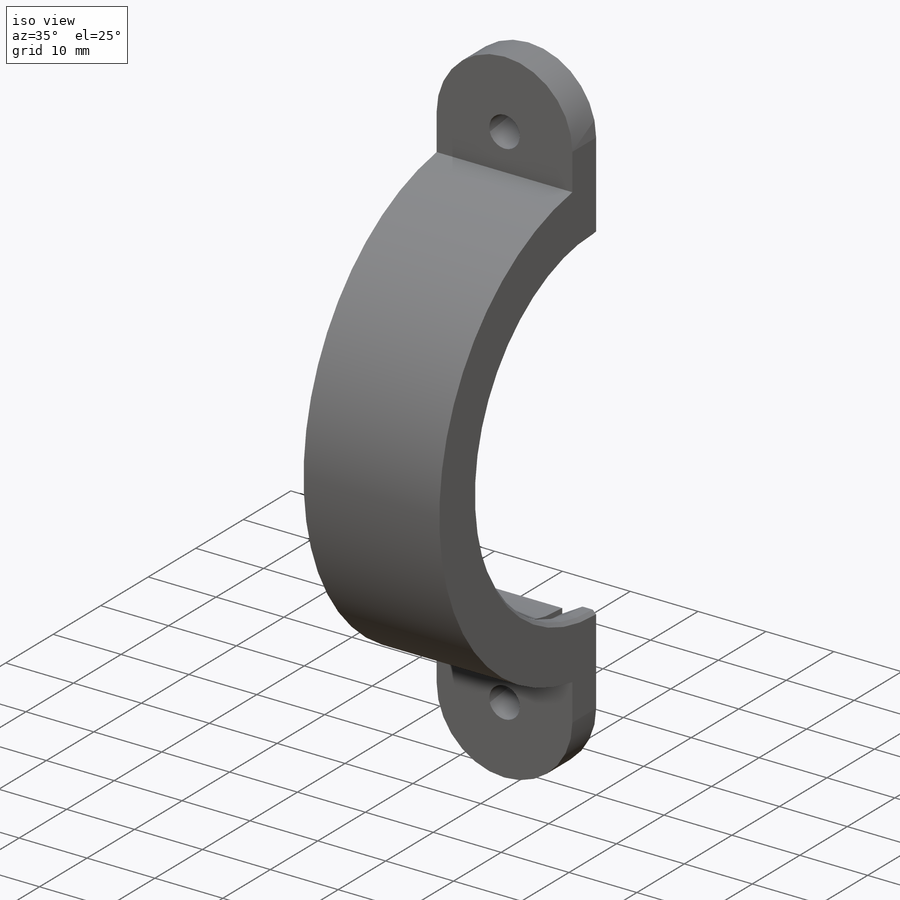
[diagram: iso view]
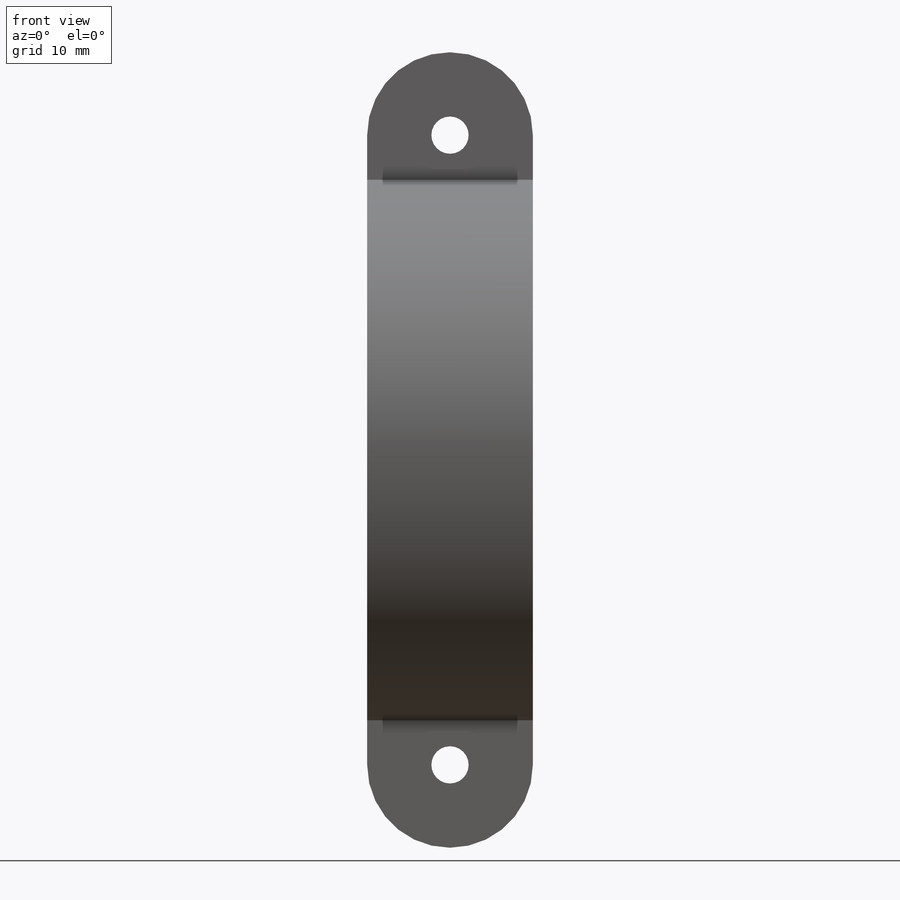
[diagram: front view]
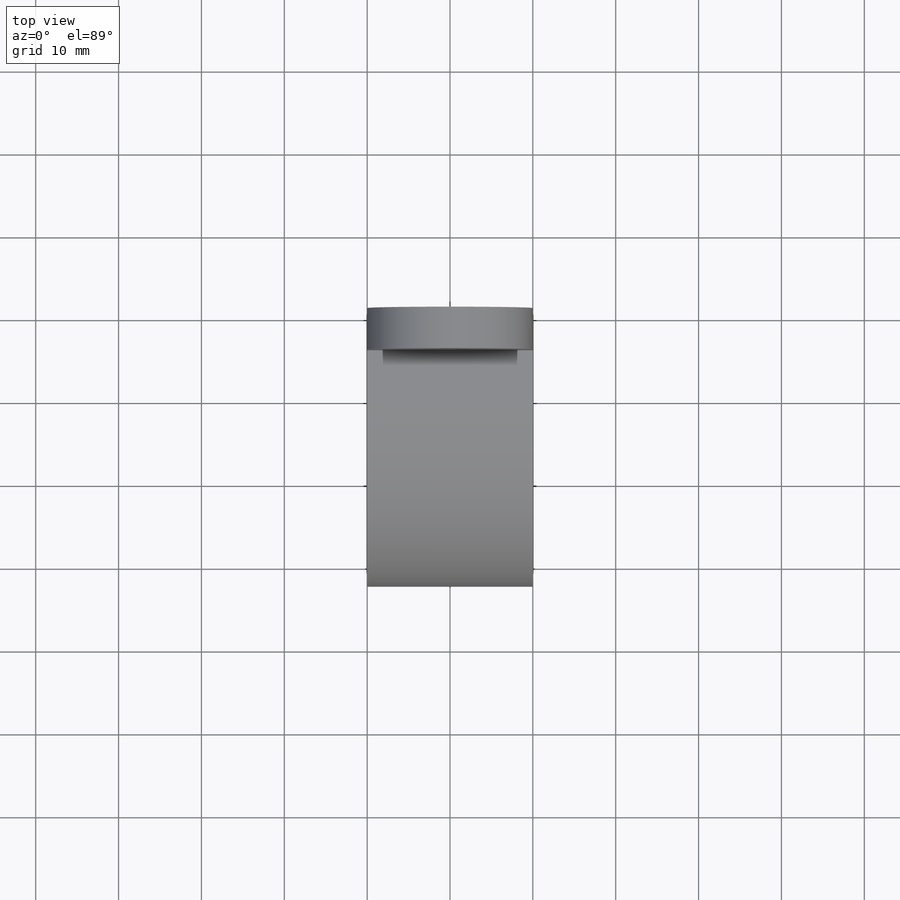
[diagram: top view]
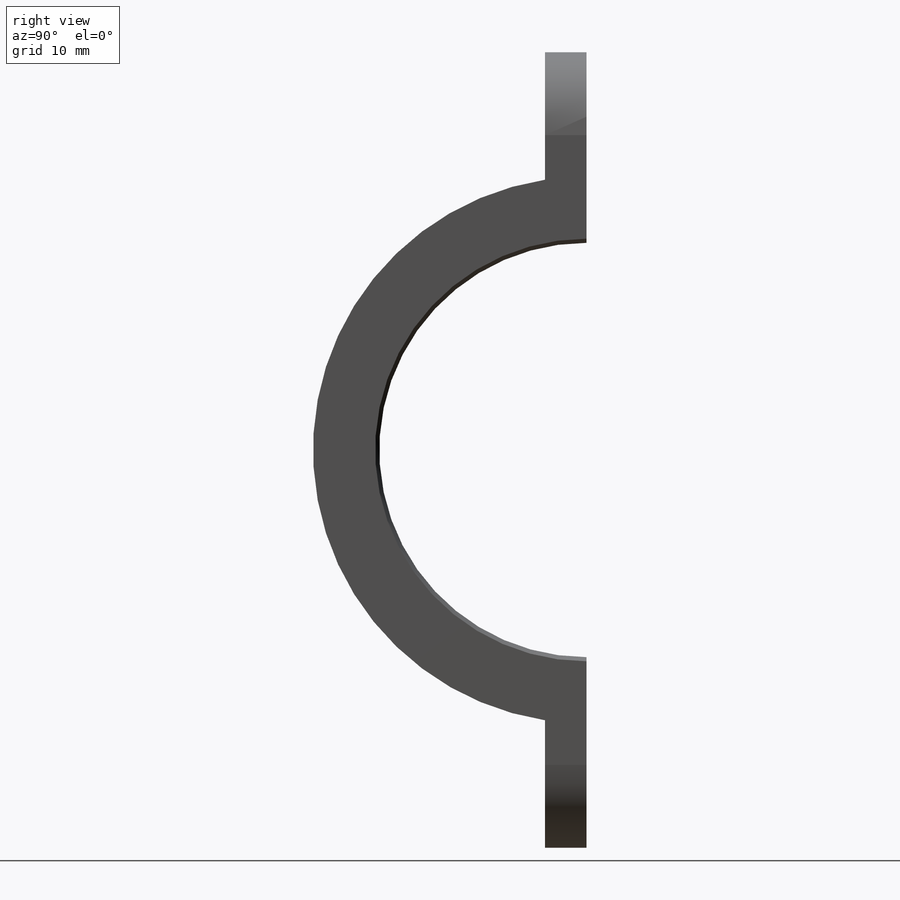
[diagram: right view]
SOLIDWORKS PART (.sldprt)
format: sldprt  version: not decoded by parser v0  size: 189,952 bytes
history: native  units: mm
features: sketch x6, extrude x2, material x1, revolve x1, cut_extrude x1, chamfer x1 (+16 scaffold rows collapsed)
feature tree (28):
  scaffold x16  (default folders/planes/origin — collapsed)
  material  "Material <not specified>"
  sketch  "Sketch1"  dims[D1=15.0mm D2=2.0mm D3=0.75mm D4=3.0mm D5=1.0mm D6=7.0mm D7=26.0mm D8=0.0mm]
  revolve  "Revolve1"  Angle=180deg
  sketch  "3DSketch1"
  sketch  "Sketch9"  dims[D1=5.0mm]
  extrude  "Boss-Extrude3"  Depth=5mm
  sketch  "3DSketch2"  dims[D1=90.0deg]
  sketch  "Sketch11"  dims[D1=5.0mm]
  extrude  "Boss-Extrude4"  Depth=5mm
  sketch  "Sketch17"  dims[D1=4.4958mm D2=4.4958mm]
  cut_extrude  "Cut-Extrude1"  [1 undecoded]
  chamfer  "Chamfer1"  Distance=0.5mm Angle=45deg
decode coverage: 9 of 11 modeling features carry decoded parameters
note: 1 parameter value undecoded
note: suppression state not decoded; provenance and decode notes live in map.json
